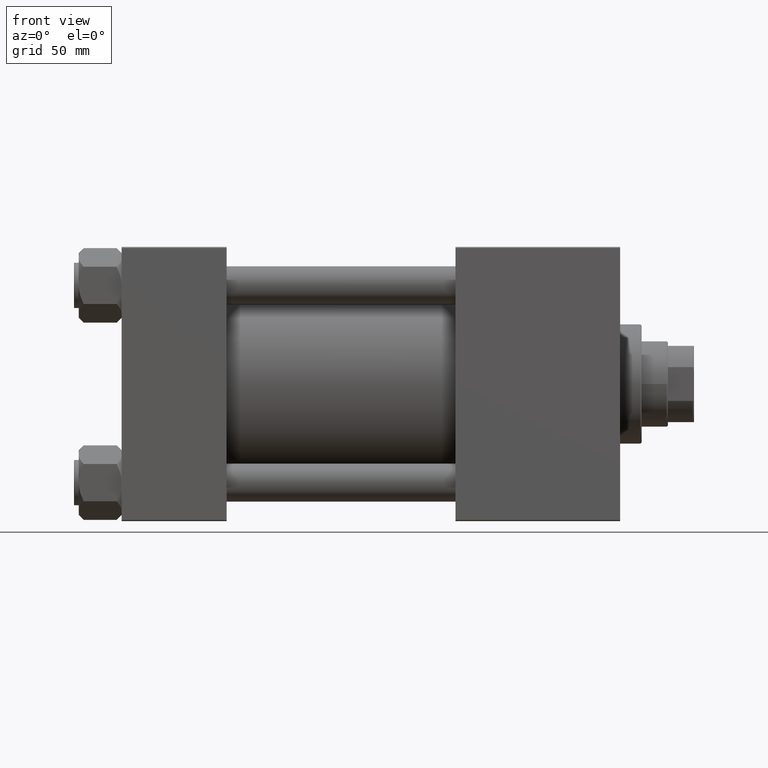
[diagram: clean part render]
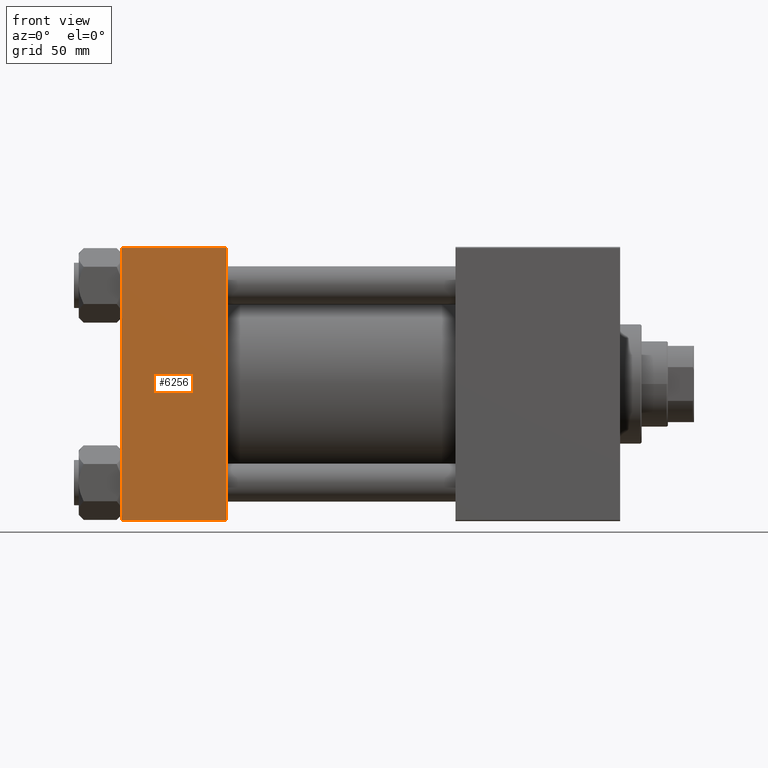
[diagram: same view with one face highlighted and labeled with its STEP entity id]
A machine part, front view. The second image highlights one B-rep face of the part: STEP entity #6256.
In plain terms, the highlighted planar face has unit normal (0, 1, 0).
Its self-contained STEP definition (entity closure, byte-faithful):
#1738 = VERTEX_POINT ( 'NONE', #5148 ) ;
#2220 = VECTOR ( 'NONE', #14004, 1000.000000000000000 ) ;
#3630 = FACE_OUTER_BOUND ( 'NONE', #39365, .T. ) ;
#4530 = ORIENTED_EDGE ( 'NONE', *, *, #32528, .F. ) ;
#5148 = CARTESIAN_POINT ( 'NONE',  ( 0.000000000000000000, -57.50000000000000711, -57.00000000000000711 ) ) ;
#5161 = LINE ( 'NONE', #27709, #50323 ) ;
#6256 = ADVANCED_FACE ( 'NONE', ( #3630 ), #19753, .F. ) ;
#6431 = CARTESIAN_POINT ( 'NONE',  ( 0.000000000000000000, -57.50000000000000711, 57.49999999999999289 ) ) ;
#7388 = LINE ( 'NONE', #46539, #10837 ) ;
#10837 = VECTOR ( 'NONE', #27354, 1000.000000000000000 ) ;
#11297 = ORIENTED_EDGE ( 'NONE', *, *, #40251, .T. ) ;
#14004 = DIRECTION ( 'NONE',  ( -1.000000000000000000, 0.000000000000000000, 0.000000000000000000 ) ) ;
#14379 = LINE ( 'NONE', #6431, #41334 ) ;
#16953 = DIRECTION ( 'NONE',  ( 1.000000000000000000, 0.000000000000000000, 0.000000000000000000 ) ) ;
#19753 = PLANE ( 'NONE',  #44417 ) ;
#23085 = DIRECTION ( 'NONE',  ( -0.000000000000000000, 1.000000000000000000, 0.000000000000000000 ) ) ;
#24896 = VERTEX_POINT ( 'NONE', #40841 ) ;
#27354 = DIRECTION ( 'NONE',  ( 0.000000000000000000, 0.000000000000000000, -1.000000000000000000 ) ) ;
#27709 = CARTESIAN_POINT ( 'NONE',  ( 44.00000000000000000, -57.50000000000000711, -57.00000000000000711 ) ) ;
#29556 = CARTESIAN_POINT ( 'NONE',  ( 0.000000000000000000, -57.50000000000000711, 57.00000000000000711 ) ) ;
#29727 = DIRECTION ( 'NONE',  ( 0.000000000000000000, 0.000000000000000000, -1.000000000000000000 ) ) ;
#31041 = CARTESIAN_POINT ( 'NONE',  ( 44.00000000000000000, -57.50000000000000711, 57.49999999999999289 ) ) ;
#32528 = EDGE_CURVE ( 'NONE', #47393, #24896, #7388, .T. ) ;
#33451 = LINE ( 'NONE', #49055, #2220 ) ;
#35367 = DIRECTION ( 'NONE',  ( 0.000000000000000000, -0.000000000000000000, 1.000000000000000000 ) ) ;
#39188 = ORIENTED_EDGE ( 'NONE', *, *, #41134, .T. ) ;
#39365 = EDGE_LOOP ( 'NONE', ( #39188, #11297, #4530, #42679 ) ) ;
#40251 = EDGE_CURVE ( 'NONE', #1738, #24896, #5161, .T. ) ;
#40841 = CARTESIAN_POINT ( 'NONE',  ( 44.00000000000000000, -57.50000000000000711, -57.00000000000000711 ) ) ;
#41134 = EDGE_CURVE ( 'NONE', #45463, #1738, #14379, .T. ) ;
#41334 = VECTOR ( 'NONE', #29727, 1000.000000000000000 ) ;
#42679 = ORIENTED_EDGE ( 'NONE', *, *, #48878, .T. ) ;
#44417 = AXIS2_PLACEMENT_3D ( 'NONE', #31041, #23085, #35367 ) ;
#45463 = VERTEX_POINT ( 'NONE', #29556 ) ;
#46539 = CARTESIAN_POINT ( 'NONE',  ( 44.00000000000000000, -57.50000000000000711, 57.49999999999999289 ) ) ;
#47393 = VERTEX_POINT ( 'NONE', #50677 ) ;
#48878 = EDGE_CURVE ( 'NONE', #47393, #45463, #33451, .T. ) ;
#49055 = CARTESIAN_POINT ( 'NONE',  ( 44.00000000000000000, -57.50000000000000711, 57.00000000000000711 ) ) ;
#50323 = VECTOR ( 'NONE', #16953, 1000.000000000000000 ) ;
#50677 = CARTESIAN_POINT ( 'NONE',  ( 44.00000000000000000, -57.50000000000000711, 57.00000000000000711 ) ) ;